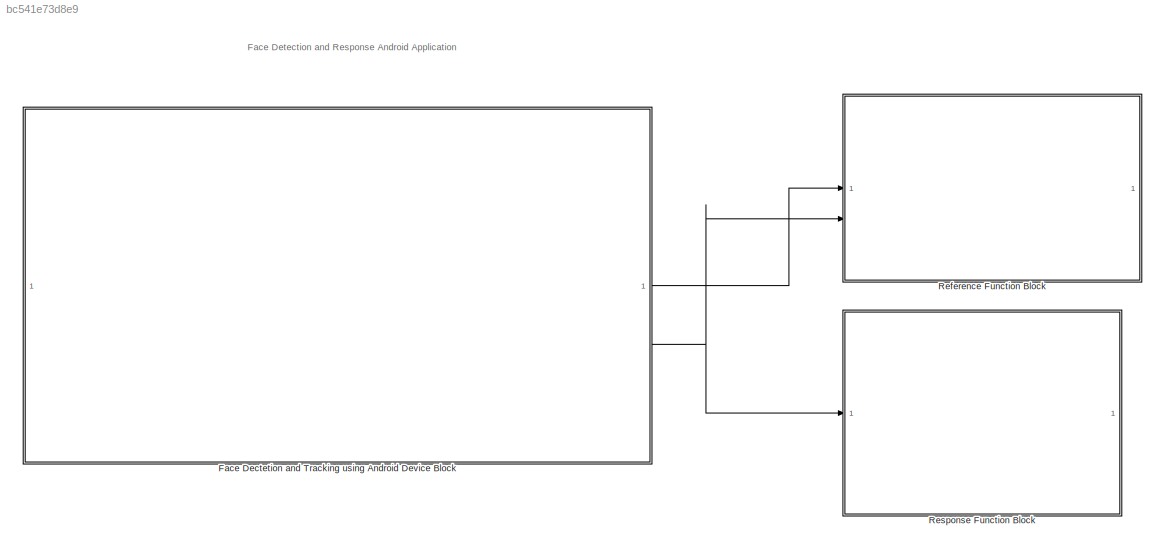
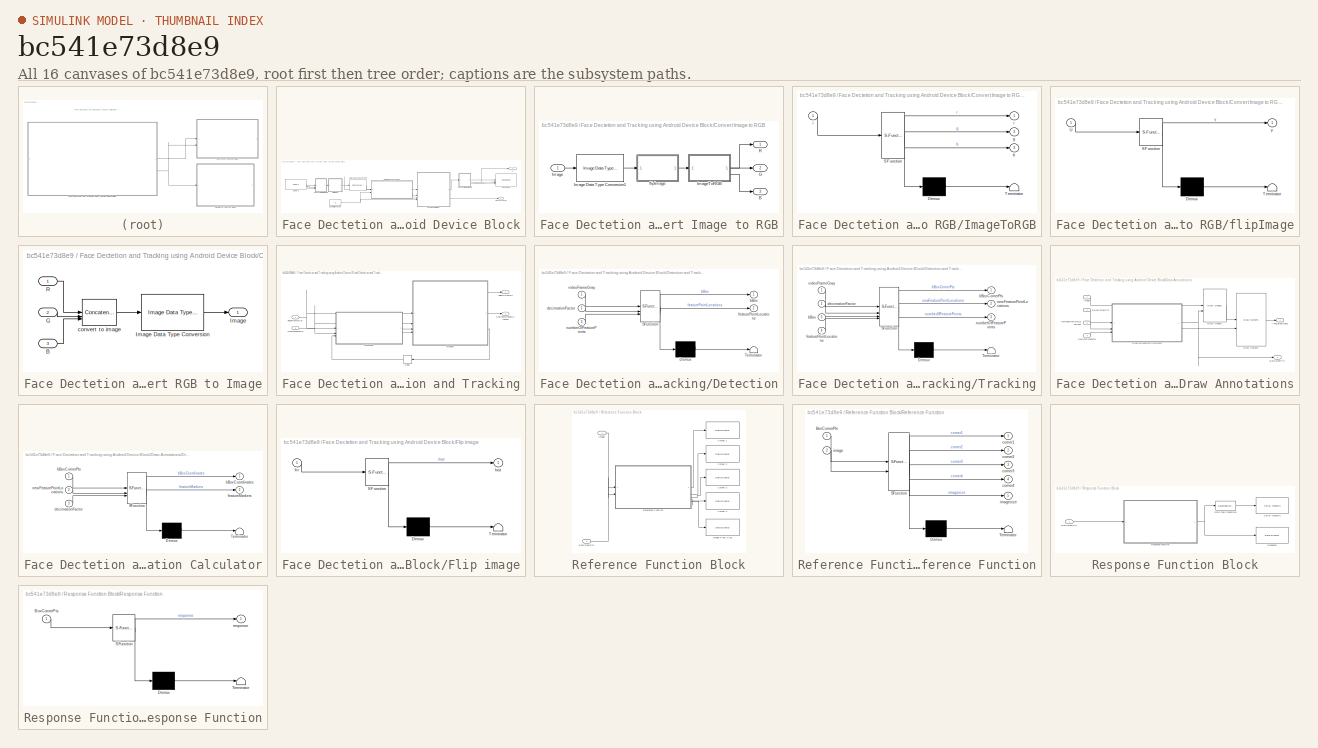
[diagram: thumbnail index - all 16 canvases of the model, root first then tree order]
MODEL slx_bc541e73d8e9
KIND model
CONFIG AbsTol = auto
CONFIG EnableMultiTasking = off
CONFIG FixedStep = auto
CONFIG MaxStep = auto
CONFIG MinStep = auto
CONFIG RelTol = 1e-3
CONFIG SampleTimeConstraint = Unconstrained
CONFIG SolverName = FixedStepAuto
CONFIG StartTime = 0.0
CONFIG StopTime = inf
BLOCK [SubSystem] Face Dectetion and Tracking using Android Device Block
BLOCK [Outport] Face Dectetion and Tracking using Android Device Block/BoxCornerPts
  Port = 2
BLOCK [Reference] Face Dectetion and Tracking using Android Device Block/Camera  REF=androidaudiovideolib/Camera
  SourceBlock = androidaudiovideolib/Camera
  SourceType = codertarget.internal.androidCamera
BLOCK [Reference] Face Dectetion and Tracking using Android Device Block/Color Space Conversion  REF=visionconversions/Color Space
 Conversion
  SourceBlock = visionconversions/Color Space\n Conversion
  SourceType = Color Space Conversion
BLOCK [SubSystem] Face Dectetion and Tracking using Android Device Block/Convert Image to RGB
BLOCK [Outport] Face Dectetion and Tracking using Android Device Block/Convert Image to RGB/B
  Port = 3
BLOCK [Outport] Face Dectetion and Tracking using Android Device Block/Convert Image to RGB/G
  Port = 2
BLOCK [Inport] Face Dectetion and Tracking using Android Device Block/Convert Image to RGB/Image
BLOCK [Reference] Face Dectetion and Tracking using Android Device Block/Convert Image to RGB/Image Data Type Conversion1  REF=visionconversions/Image Data Type
Conversion
  SourceBlock = visionconversions/Image Data Type\nConversion
  SourceType = Image Data Type Conversion
BLOCK [SubSystem] Face Dectetion and Tracking using Android Device Block/Convert Image to RGB/ImageToRGB
  ErrorFcn = Stateflow.Translate.translate
  PermitHierarchicalResolution = ExplicitOnly
  SFBlockType = MATLAB Function
  TreatAsAtomicUnit = on
BLOCK [Demux] Face Dectetion and Tracking using Android Device Block/Convert Image to RGB/ImageToRGB/ Demux 
  Outputs = 1
BLOCK [S-Function] Face Dectetion and Tracking using Android Device Block/Convert Image to RGB/ImageToRGB/ SFunction 
  EnableBusSupport = on
  FunctionName = sf_sfun
  PortCounts = [1 4]
  SFcnIsStateOwnerBlock = off
  SFunctionDeploymentMode = off
  Tag = Stateflow S-Function 4
BLOCK [Terminator] Face Dectetion and Tracking using Android Device Block/Convert Image to RGB/ImageToRGB/ Terminator 
BLOCK [Outport] Face Dectetion and Tracking using Android Device Block/Convert Image to RGB/ImageToRGB/b
  Port = 3
  VectorParamsAs1DForOutWhenUnconnected = off
BLOCK [Outport] Face Dectetion and Tracking using Android Device Block/Convert Image to RGB/ImageToRGB/g
  Port = 2
  VectorParamsAs1DForOutWhenUnconnected = off
BLOCK [Inport] Face Dectetion and Tracking using Android Device Block/Convert Image to RGB/ImageToRGB/i
BLOCK [Outport] Face Dectetion and Tracking using Android Device Block/Convert Image to RGB/ImageToRGB/r
  VectorParamsAs1DForOutWhenUnconnected = off
BLOCK [Outport] Face Dectetion and Tracking using Android Device Block/Convert Image to RGB/R
BLOCK [SubSystem] Face Dectetion and Tracking using Android Device Block/Convert Image to RGB/flipImage
  ErrorFcn = Stateflow.Translate.translate
  PermitHierarchicalResolution = ExplicitOnly
  SFBlockType = MATLAB Function
  TreatAsAtomicUnit = on
BLOCK [Demux] Face Dectetion and Tracking using Android Device Block/Convert Image to RGB/flipImage/ Demux 
  Outputs = 1
BLOCK [S-Function] Face Dectetion and Tracking using Android Device Block/Convert Image to RGB/flipImage/ SFunction 
  EnableBusSupport = on
  FunctionName = sf_sfun
  PortCounts = [1 2]
  SFcnIsStateOwnerBlock = off
  SFunctionDeploymentMode = off
  Tag = Stateflow S-Function 7
BLOCK [Terminator] Face Dectetion and Tracking using Android Device Block/Convert Image to RGB/flipImage/ Terminator 
BLOCK [Inport] Face Dectetion and Tracking using Android Device Block/Convert Image to RGB/flipImage/U
BLOCK [Outport] Face Dectetion and Tracking using Android Device Block/Convert Image to RGB/flipImage/y
  VectorParamsAs1DForOutWhenUnconnected = off
BLOCK [SubSystem] Face Dectetion and Tracking using Android Device Block/Convert RGB to Image
BLOCK [Inport] Face Dectetion and Tracking using Android Device Block/Convert RGB to Image/B
  Port = 3
BLOCK [Inport] Face Dectetion and Tracking using Android Device Block/Convert RGB to Image/G
  Port = 2
BLOCK [Outport] Face Dectetion and Tracking using Android Device Block/Convert RGB to Image/Image
BLOCK [Reference] Face Dectetion and Tracking using Android Device Block/Convert RGB to Image/Image Data Type Conversion  REF=visionconversions/Image Data Type
Conversion
  SourceBlock = visionconversions/Image Data Type\nConversion
  SourceType = Image Data Type Conversion
BLOCK [Inport] Face Dectetion and Tracking using Android Device Block/Convert RGB to Image/R
BLOCK [Concatenate] Face Dectetion and Tracking using Android Device Block/Convert RGB to Image/convert to image
  ConcatenateDimension = 3
  Mode = Multidimensional array
  NumInputs = 3
BLOCK [Constant] Face Dectetion and Tracking using Android Device Block/Decimation Factor
  Value = 3
BLOCK [SubSystem] Face Dectetion and Tracking using Android Device Block/Detection and Tracking
BLOCK [Outport] Face Dectetion and Tracking using Android Device Block/Detection and Tracking/BBoxCornerPts
  VectorParamsAs1DForOutWhenUnconnected = off
BLOCK [Inport] Face Dectetion and Tracking using Android Device Block/Detection and Tracking/DecimationFactor
  Port = 2
BLOCK [Delay] Face Dectetion and Tracking using Android Device Block/Detection and Tracking/Delay
  DelayLength = 1
  InputPortMap = u0
BLOCK [SubSystem] Face Dectetion and Tracking using Android Device Block/Detection and Tracking/Detection
  ErrorFcn = Stateflow.Translate.translate
  PermitHierarchicalResolution = ExplicitOnly
  SFBlockType = MATLAB Function
  TreatAsAtomicUnit = on
BLOCK [Demux] Face Dectetion and Tracking using Android Device Block/Detection and Tracking/Detection/ Demux 
  Outputs = 1
BLOCK [S-Function] Face Dectetion and Tracking using Android Device Block/Detection and Tracking/Detection/ SFunction 
  EnableBusSupport = on
  FunctionName = sf_sfun
  PortCounts = [3 3]
  SFcnIsStateOwnerBlock = off
  SFunctionDeploymentMode = off
  Tag = Stateflow S-Function 2
BLOCK [Terminator] Face Dectetion and Tracking using Android Device Block/Detection and Tracking/Detection/ Terminator 
BLOCK [Outport] Face Dectetion and Tracking using Android Device Block/Detection and Tracking/Detection/bBox
  VectorParamsAs1DForOutWhenUnconnected = off
BLOCK [Inport] Face Dectetion and Tracking using Android Device Block/Detection and Tracking/Detection/decimationFactor
  Port = 2
BLOCK [Outport] Face Dectetion and Tracking using Android Device Block/Detection and Tracking/Detection/featurePointLocations
  Port = 2
  VectorParamsAs1DForOutWhenUnconnected = off
BLOCK [Inport] Face Dectetion and Tracking using Android Device Block/Detection and Tracking/Detection/numberOfFeaturePoints
  Port = 3
BLOCK [Inport] Face Dectetion and Tracking using Android Device Block/Detection and Tracking/Detection/videoFrameGray
BLOCK [Outport] Face Dectetion and Tracking using Android Device Block/Detection and Tracking/NewFeaturePointLocations
  Port = 2
  VectorParamsAs1DForOutWhenUnconnected = off
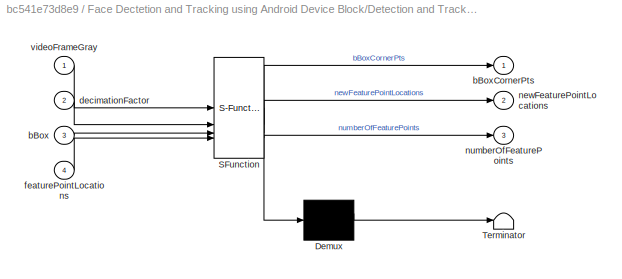
BLOCK [SubSystem] Face Dectetion and Tracking using Android Device Block/Detection and Tracking/Tracking
  ErrorFcn = Stateflow.Translate.translate
  PermitHierarchicalResolution = ExplicitOnly
  SFBlockType = MATLAB Function
  TreatAsAtomicUnit = on
BLOCK [Demux] Face Dectetion and Tracking using Android Device Block/Detection and Tracking/Tracking/ Demux 
  Outputs = 1
BLOCK [S-Function] Face Dectetion and Tracking using Android Device Block/Detection and Tracking/Tracking/ SFunction 
  EnableBusSupport = on
  FunctionName = sf_sfun
  PortCounts = [4 4]
  SFcnIsStateOwnerBlock = off
  SFunctionDeploymentMode = off
  Tag = Stateflow S-Function 1
BLOCK [Terminator] Face Dectetion and Tracking using Android Device Block/Detection and Tracking/Tracking/ Terminator 
BLOCK [Inport] Face Dectetion and Tracking using Android Device Block/Detection and Tracking/Tracking/bBox
  Port = 3
BLOCK [Outport] Face Dectetion and Tracking using Android Device Block/Detection and Tracking/Tracking/bBoxCornerPts
  VectorParamsAs1DForOutWhenUnconnected = off
BLOCK [Inport] Face Dectetion and Tracking using Android Device Block/Detection and Tracking/Tracking/decimationFactor
  Port = 2
BLOCK [Inport] Face Dectetion and Tracking using Android Device Block/Detection and Tracking/Tracking/featurePointLocations
  Port = 4
BLOCK [Outport] Face Dectetion and Tracking using Android Device Block/Detection and Tracking/Tracking/newFeaturePointLocations
  Port = 2
  VectorParamsAs1DForOutWhenUnconnected = off
BLOCK [Outport] Face Dectetion and Tracking using Android Device Block/Detection and Tracking/Tracking/numberOfFeaturePoints
  Port = 3
  VectorParamsAs1DForOutWhenUnconnected = off
BLOCK [Inport] Face Dectetion and Tracking using Android Device Block/Detection and Tracking/Tracking/videoFrameGray
BLOCK [Inport] Face Dectetion and Tracking using Android Device Block/Detection and Tracking/VideoFrameGray
BLOCK [SubSystem] Face Dectetion and Tracking using Android Device Block/Draw Annotations
BLOCK [Outport] Face Dectetion and Tracking using Android Device Block/Draw Annotations/AnnotatedImage
  VectorParamsAs1DForOutWhenUnconnected = off
BLOCK [Inport] Face Dectetion and Tracking using Android Device Block/Draw Annotations/BBoxCornerPts
  Port = 2
BLOCK [Outport] Face Dectetion and Tracking using Android Device Block/Draw Annotations/BoxCornerPts
  Port = 2
  VectorParamsAs1DForOutWhenUnconnected = off
BLOCK [Inport] Face Dectetion and Tracking using Android Device Block/Draw Annotations/DecimationFactor
  Port = 4
BLOCK [Reference] Face Dectetion and Tracking using Android Device Block/Draw Annotations/Draw Markers  REF=visiontextngfix/Draw Markers
  SourceBlock = visiontextngfix/Draw Markers
  SourceType = Draw Markers
BLOCK [Reference] Face Dectetion and Tracking using Android Device Block/Draw Annotations/Draw Shapes  REF=visiontextngfix/Draw Shapes
  SourceBlock = visiontextngfix/Draw Shapes
  SourceType = Draw Shapes
BLOCK [SubSystem] Face Dectetion and Tracking using Android Device Block/Draw Annotations/Drawing Location Calculator
  ErrorFcn = Stateflow.Translate.translate
  PermitHierarchicalResolution = ExplicitOnly
  SFBlockType = MATLAB Function
  TreatAsAtomicUnit = on
BLOCK [Demux] Face Dectetion and Tracking using Android Device Block/Draw Annotations/Drawing Location Calculator/ Demux 
  Outputs = 1
BLOCK [S-Function] Face Dectetion and Tracking using Android Device Block/Draw Annotations/Drawing Location Calculator/ SFunction 
  EnableBusSupport = on
  FunctionName = sf_sfun
  PortCounts = [3 3]
  SFcnIsStateOwnerBlock = off
  SFunctionDeploymentMode = off
  Tag = Stateflow S-Function 3
BLOCK [Terminator] Face Dectetion and Tracking using Android Device Block/Draw Annotations/Drawing Location Calculator/ Terminator 
BLOCK [Outport] Face Dectetion and Tracking using Android Device Block/Draw Annotations/Drawing Location Calculator/bBoxCoordinates
  VectorParamsAs1DForOutWhenUnconnected = off
BLOCK [Inport] Face Dectetion and Tracking using Android Device Block/Draw Annotations/Drawing Location Calculator/bBoxCornerPts
BLOCK [Inport] Face Dectetion and Tracking using Android Device Block/Draw Annotations/Drawing Location Calculator/decimationFactor
  Port = 3
BLOCK [Outport] Face Dectetion and Tracking using Android Device Block/Draw Annotations/Drawing Location Calculator/featureMarkers
  Port = 2
  VectorParamsAs1DForOutWhenUnconnected = off
BLOCK [Inport] Face Dectetion and Tracking using Android Device Block/Draw Annotations/Drawing Location Calculator/newFeaturePointLocations
  Port = 2
BLOCK [Inport] Face Dectetion and Tracking using Android Device Block/Draw Annotations/Image
BLOCK [Inport] Face Dectetion and Tracking using Android Device Block/Draw Annotations/NewFeaturePointLocations
  Port = 3
BLOCK [SubSystem] Face Dectetion and Tracking using Android Device Block/Flip image
  ErrorFcn = Stateflow.Translate.translate
  PermitHierarchicalResolution = ExplicitOnly
  SFBlockType = MATLAB Function
  TreatAsAtomicUnit = on
BLOCK [Demux] Face Dectetion and Tracking using Android Device Block/Flip image/ Demux 
  Outputs = 1
BLOCK [S-Function] Face Dectetion and Tracking using Android Device Block/Flip image/ SFunction 
  EnableBusSupport = on
  FunctionName = sf_sfun
  PortCounts = [1 2]
  SFcnIsStateOwnerBlock = off
  SFunctionDeploymentMode = off
  Tag = Stateflow S-Function 5
BLOCK [Terminator] Face Dectetion and Tracking using Android Device Block/Flip image/ Terminator 
BLOCK [Inport] Face Dectetion and Tracking using Android Device Block/Flip image/Iin
BLOCK [Outport] Face Dectetion and Tracking using Android Device Block/Flip image/Iout
  VectorParamsAs1DForOutWhenUnconnected = off
BLOCK [Outport] Face Dectetion and Tracking using Android Device Block/G
BLOCK [Reference] Face Dectetion and Tracking using Android Device Block/Video Display  REF=androidaudiovideolib/Video Display
  SourceBlock = androidaudiovideolib/Video Display
  SourceType = codertarget.internal.androidVideoDisplay
BLOCK [SubSystem] Reference Function Block
BLOCK [Inport] Reference Function Block/BoxCornerPts
  Port = 2
BLOCK [Reference] Reference Function Block/Corner 1  REF=androiduilib/Data Display
  SourceBlock = androiduilib/Data Display
  SourceType = codertarget.internal.androidDataDisplay
BLOCK [Reference] Reference Function Block/Corner 2  REF=androiduilib/Data Display
  SourceBlock = androiduilib/Data Display
  SourceType = codertarget.internal.androidDataDisplay
BLOCK [Reference] Reference Function Block/Corner 3  REF=androiduilib/Data Display
  SourceBlock = androiduilib/Data Display
  SourceType = codertarget.internal.androidDataDisplay
BLOCK [Reference] Reference Function Block/Corner 4  REF=androiduilib/Data Display
  SourceBlock = androiduilib/Data Display
  SourceType = codertarget.internal.androidDataDisplay
BLOCK [Reference] Reference Function Block/Image Pixel Size  REF=androiduilib/Data Display
  SourceBlock = androiduilib/Data Display
  SourceType = codertarget.internal.androidDataDisplay
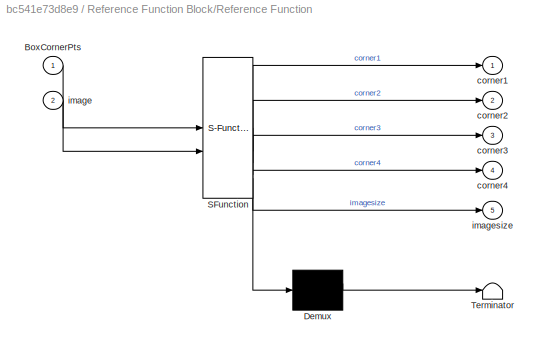
BLOCK [SubSystem] Reference Function Block/Reference Function
  ErrorFcn = Stateflow.Translate.translate
  PermitHierarchicalResolution = ExplicitOnly
  SFBlockType = MATLAB Function
  TreatAsAtomicUnit = on
BLOCK [Demux] Reference Function Block/Reference Function/ Demux 
  Outputs = 1
BLOCK [S-Function] Reference Function Block/Reference Function/ SFunction 
  EnableBusSupport = on
  FunctionName = sf_sfun
  PortCounts = [2 6]
  SFcnIsStateOwnerBlock = off
  SFunctionDeploymentMode = off
  Tag = Stateflow S-Function 8
BLOCK [Terminator] Reference Function Block/Reference Function/ Terminator 
BLOCK [Inport] Reference Function Block/Reference Function/BoxCornerPts
BLOCK [Outport] Reference Function Block/Reference Function/corner1
  VectorParamsAs1DForOutWhenUnconnected = off
BLOCK [Outport] Reference Function Block/Reference Function/corner2
  Port = 2
BLOCK [Outport] Reference Function Block/Reference Function/corner3
  Port = 3
BLOCK [Outport] Reference Function Block/Reference Function/corner4
  Port = 4
BLOCK [Inport] Reference Function Block/Reference Function/image
  Port = 2
BLOCK [Outport] Reference Function Block/Reference Function/imagesize
  Port = 5
BLOCK [Inport] Reference Function Block/image
BLOCK [SubSystem] Response Function Block
BLOCK [Inport] Response Function Block/BoxCornerPts
BLOCK [DataTypeConversion] Response Function Block/Data Type Conversion
  OutDataTypeStr = uint8
  RndMeth = Floor
  SaturateOnIntegerOverflow = off
BLOCK [Reference] Response Function Block/Response  REF=androiduilib/Data Display
  SourceBlock = androiduilib/Data Display
  SourceType = codertarget.internal.androidDataDisplay
BLOCK [SubSystem] Response Function Block/Response Function
  ErrorFcn = Stateflow.Translate.translate
  PermitHierarchicalResolution = ExplicitOnly
  SFBlockType = MATLAB Function
  TreatAsAtomicUnit = on
BLOCK [Demux] Response Function Block/Response Function/ Demux 
  Outputs = 1
BLOCK [S-Function] Response Function Block/Response Function/ SFunction 
  EnableBusSupport = on
  FunctionName = sf_sfun
  PortCounts = [1 2]
  SFcnIsStateOwnerBlock = off
  SFunctionDeploymentMode = off
  Tag = Stateflow S-Function 9
BLOCK [Terminator] Response Function Block/Response Function/ Terminator 
BLOCK [Inport] Response Function Block/Response Function/BoxCornerPts
BLOCK [Outport] Response Function Block/Response Function/response
  VectorParamsAs1DForOutWhenUnconnected = off
BLOCK [Reference] Response Function Block/Serial Transmit  REF=androidcommunicationlib/Serial Transmit
  SourceBlock = androidcommunicationlib/Serial Transmit
  SourceType = codertarget.internal.androidSerialTransmit
ANNOTATION (root): Face Detection and Response Android Application
LINE Face Dectetion and Tracking using Android Device Block/Camera:1 -> Face Dectetion and Tracking using Android Device Block/Convert RGB to Image:1
LINE Face Dectetion and Tracking using Android Device Block/Camera:2 -> Face Dectetion and Tracking using Android Device Block/Convert RGB to Image:2
LINE Face Dectetion and Tracking using Android Device Block/Camera:3 -> Face Dectetion and Tracking using Android Device Block/Convert RGB to Image:3
LINE Face Dectetion and Tracking using Android Device Block/Color Space Conversion:1 -> Face Dectetion and Tracking using Android Device Block/Detection and Tracking:1
LINE Face Dectetion and Tracking using Android Device Block/Convert Image to RGB/Image Data Type Conversion1:1 -> Face Dectetion and Tracking using Android Device Block/Convert Image to RGB/flipImage:1
LINE Face Dectetion and Tracking using Android Device Block/Convert Image to RGB/Image:1 -> Face Dectetion and Tracking using Android Device Block/Convert Image to RGB/Image Data Type Conversion1:1
LINE Face Dectetion and Tracking using Android Device Block/Convert Image to RGB/ImageToRGB:1 -> Face Dectetion and Tracking using Android Device Block/Convert Image to RGB/R:1
LINE Face Dectetion and Tracking using Android Device Block/Convert Image to RGB/ImageToRGB:2 -> Face Dectetion and Tracking using Android Device Block/Convert Image to RGB/G:1
LINE Face Dectetion and Tracking using Android Device Block/Convert Image to RGB/ImageToRGB:3 -> Face Dectetion and Tracking using Android Device Block/Convert Image to RGB/B:1
LINE Face Dectetion and Tracking using Android Device Block/Convert Image to RGB/flipImage:1 -> Face Dectetion and Tracking using Android Device Block/Convert Image to RGB/ImageToRGB:1
LINE Face Dectetion and Tracking using Android Device Block/Convert Image to RGB:1 -> Face Dectetion and Tracking using Android Device Block/Video Display:1
NET Face Dectetion and Tracking using Android Device Block/Convert Image to RGB:2 -> Face Dectetion and Tracking using Android Device Block/G:1, Face Dectetion and Tracking using Android Device Block/Video Display:2
LINE Face Dectetion and Tracking using Android Device Block/Convert Image to RGB:3 -> Face Dectetion and Tracking using Android Device Block/Video Display:3
LINE Face Dectetion and Tracking using Android Device Block/Convert RGB to Image/B:1 -> Face Dectetion and Tracking using Android Device Block/Convert RGB to Image/convert to image:3
LINE Face Dectetion and Tracking using Android Device Block/Convert RGB to Image/G:1 -> Face Dectetion and Tracking using Android Device Block/Convert RGB to Image/convert to image:2
LINE Face Dectetion and Tracking using Android Device Block/Convert RGB to Image/Image Data Type Conversion:1 -> Face Dectetion and Tracking using Android Device Block/Convert RGB to Image/Image:1
LINE Face Dectetion and Tracking using Android Device Block/Convert RGB to Image/R:1 -> Face Dectetion and Tracking using Android Device Block/Convert RGB to Image/convert to image:1
LINE Face Dectetion and Tracking using Android Device Block/Convert RGB to Image/convert to image:1 -> Face Dectetion and Tracking using Android Device Block/Convert RGB to Image/Image Data Type Conversion:1
LINE Face Dectetion and Tracking using Android Device Block/Convert RGB to Image:1 -> Face Dectetion and Tracking using Android Device Block/Flip image:1
NET Face Dectetion and Tracking using Android Device Block/Decimation Factor:1 -> Face Dectetion and Tracking using Android Device Block/Detection and Tracking:2, Face Dectetion and Tracking using Android Device Block/Draw Annotations:4
NET Face Dectetion and Tracking using Android Device Block/Detection and Tracking/DecimationFactor:1 -> Face Dectetion and Tracking using Android Device Block/Detection and Tracking/Detection:2, Face Dectetion and Tracking using Android Device Block/Detection and Tracking/Tracking:2
LINE Face Dectetion and Tracking using Android Device Block/Detection and Tracking/Delay:1 -> Face Dectetion and Tracking using Android Device Block/Detection and Tracking/Detection:3
LINE Face Dectetion and Tracking using Android Device Block/Detection and Tracking/Detection:1 -> Face Dectetion and Tracking using Android Device Block/Detection and Tracking/Tracking:3
LINE Face Dectetion and Tracking using Android Device Block/Detection and Tracking/Detection:2 -> Face Dectetion and Tracking using Android Device Block/Detection and Tracking/Tracking:4
LINE Face Dectetion and Tracking using Android Device Block/Detection and Tracking/Tracking:1 -> Face Dectetion and Tracking using Android Device Block/Detection and Tracking/BBoxCornerPts:1
LINE Face Dectetion and Tracking using Android Device Block/Detection and Tracking/Tracking:2 -> Face Dectetion and Tracking using Android Device Block/Detection and Tracking/NewFeaturePointLocations:1
LINE Face Dectetion and Tracking using Android Device Block/Detection and Tracking/Tracking:3 -> Face Dectetion and Tracking using Android Device Block/Detection and Tracking/Delay:1
NET Face Dectetion and Tracking using Android Device Block/Detection and Tracking/VideoFrameGray:1 -> Face Dectetion and Tracking using Android Device Block/Detection and Tracking/Detection:1, Face Dectetion and Tracking using Android Device Block/Detection and Tracking/Tracking:1
LINE Face Dectetion and Tracking using Android Device Block/Detection and Tracking:1 -> Face Dectetion and Tracking using Android Device Block/Draw Annotations:2
LINE Face Dectetion and Tracking using Android Device Block/Detection and Tracking:2 -> Face Dectetion and Tracking using Android Device Block/Draw Annotations:3
LINE Face Dectetion and Tracking using Android Device Block/Draw Annotations/BBoxCornerPts:1 -> Face Dectetion and Tracking using Android Device Block/Draw Annotations/Drawing Location Calculator:1
LINE Face Dectetion and Tracking using Android Device Block/Draw Annotations/DecimationFactor:1 -> Face Dectetion and Tracking using Android Device Block/Draw Annotations/Drawing Location Calculator:3
LINE Face Dectetion and Tracking using Android Device Block/Draw Annotations/Draw Markers:1 -> Face Dectetion and Tracking using Android Device Block/Draw Annotations/AnnotatedImage:1
LINE Face Dectetion and Tracking using Android Device Block/Draw Annotations/Draw Shapes:1 -> Face Dectetion and Tracking using Android Device Block/Draw Annotations/Draw Markers:1
NET Face Dectetion and Tracking using Android Device Block/Draw Annotations/Drawing Location Calculator:1 -> Face Dectetion and Tracking using Android Device Block/Draw Annotations/BoxCornerPts:1, Face Dectetion and Tracking using Android Device Block/Draw Annotations/Draw Shapes:2
LINE Face Dectetion and Tracking using Android Device Block/Draw Annotations/Drawing Location Calculator:2 -> Face Dectetion and Tracking using Android Device Block/Draw Annotations/Draw Markers:2
LINE Face Dectetion and Tracking using Android Device Block/Draw Annotations/Image:1 -> Face Dectetion and Tracking using Android Device Block/Draw Annotations/Draw Shapes:1
LINE Face Dectetion and Tracking using Android Device Block/Draw Annotations/NewFeaturePointLocations:1 -> Face Dectetion and Tracking using Android Device Block/Draw Annotations/Drawing Location Calculator:2
LINE Face Dectetion and Tracking using Android Device Block/Draw Annotations:1 -> Face Dectetion and Tracking using Android Device Block/Convert Image to RGB:1
LINE Face Dectetion and Tracking using Android Device Block/Draw Annotations:2 -> Face Dectetion and Tracking using Android Device Block/BoxCornerPts:1
NET Face Dectetion and Tracking using Android Device Block/Flip image:1 -> Face Dectetion and Tracking using Android Device Block/Color Space Conversion:1, Face Dectetion and Tracking using Android Device Block/Draw Annotations:1
LINE Face Dectetion and Tracking using Android Device Block:1 -> Reference Function Block:1
NET Face Dectetion and Tracking using Android Device Block:2 -> Reference Function Block:2, Response Function Block:1
LINE Reference Function Block/BoxCornerPts:1 -> Reference Function Block/Reference Function:1
LINE Reference Function Block/Reference Function:1 -> Reference Function Block/Corner 1:1
LINE Reference Function Block/Reference Function:2 -> Reference Function Block/Corner 2:1
LINE Reference Function Block/Reference Function:3 -> Reference Function Block/Corner 3:1
LINE Reference Function Block/Reference Function:4 -> Reference Function Block/Corner 4:1
LINE Reference Function Block/Reference Function:5 -> Reference Function Block/Image Pixel Size:1
LINE Reference Function Block/image:1 -> Reference Function Block/Reference Function:2
LINE Response Function Block/BoxCornerPts:1 -> Response Function Block/Response Function:1
LINE Response Function Block/Data Type Conversion:1 -> Response Function Block/Serial Transmit:1
NET Response Function Block/Response Function:1 -> Response Function Block/Data Type Conversion:1, Response Function Block/Response:1
note: NET lines group one-source signal fan-out (src -> all destinations, sorted); 1:1 wires keep LINE
CHART Face Dectetion and Tracking using Android Device Block/Detection and Tracking/Tracking states=1 transitions=1
  STATE_LABEL 'eML_blk_kernel()'
  STATE_LABEL 'SCRIPT:\n% Function for tracking face and feature points\n%\n% <copyright redacted>\nfunction [bBoxCornerPts, newFeaturePointLocations, numberOfFeaturePoints]  = trackPoints(videoFrameGray, decimationFactor, bBox, featurePointLocations)\n%#codegen\npersistent pointTracker\npersistent oldPoints\npersistent bboxPoints\npersistent first_time\npersistent numPts\n\n% Create the point tracker object.\n...<+2704ch>'
CHART Face Dectetion and Tracking using Android Device Block/Detection and Tracking/Detection states=1 transitions=1
  STATE_LABEL 'eML_blk_kernel()'
  STATE_LABEL 'SCRIPT:\n% Function for detecting a face and feature points.\n%\n% <copyright redacted>\nfunction [bBox, featurePointLocations]  = detectFaceAndFeatures(...\n    videoFrameGray, decimationFactor, numberOfFeaturePoints)\n\n%#codegen\npersistent faceDetector\n\n% Resize frame\nvideoFrameGray = videoFrameGray(1:decimationFactor:end,1:decimationFactor:end);\n\n% Perform detection when the number of p...<+885ch>'
CHART Face Dectetion and Tracking using Android Device Block/Draw Annotations/Drawing Location Calculator states=1 transitions=1
  STATE_LABEL 'eML_blk_kernel()'
  STATE_LABEL "SCRIPT:\n% Function for calculating drawing locations\n%\n% <copyright redacted>\nfunction [bBoxCoordinates, featureMarkers]  = obtainDrawingLocations(bBoxCornerPts, newFeaturePointLocations, decimationFactor)\n\nif ~isempty(bBoxCornerPts)\n    % Convert the box corners into the [x1 y1 x2 y2 x3 y3 x4 y4]\n    % format required by insertShape.\n    bboxPolygon = reshape(bBoxCornerPts', 1, []);...<+443ch>"
CHART Face Dectetion and Tracking using Android Device Block/Convert Image to RGB/ImageToRGB states=1 transitions=1
  STATE_LABEL 'eML_blk_kernel()'
  STATE_LABEL 'SCRIPT:\nfunction [r, g, b] = ImageToRGB(i)\nr=i(:,:,1);\ng=i(:,:,2);\nb=i(:,:,3);\n\n'
CHART Face Dectetion and Tracking using Android Device Block/Flip image states=1 transitions=1
  STATE_LABEL 'eML_blk_kernel()'
  STATE_LABEL 'SCRIPT:\nfunction Iout = flip(Iin)\n%rotate image anti clockwise 90 degrees\nIin= imrotate( Iin , 90 );\n%Flip image\nIin=flipdim(Iin,1);\nIout = Iin;'
CHART Face Dectetion and Tracking using Android Device Block/Convert Image to RGB/flipImage states=1 transitions=1
  STATE_LABEL 'eML_blk_kernel()'
  STATE_LABEL 'SCRIPT:\nfunction y = flipImage(U)\nU= imrotate( U , 90 );\n%Flip image\nU=flipdim(U,1);\n\ny = U;\n'
CHART Reference Function Block/Reference Function states=1 transitions=1
  STATE_LABEL 'eML_blk_kernel()'
  STATE_LABEL 'SCRIPT:\n% Function to show the coordinates of each corner on the android device for\n% reference.\n\nfunction [corner1,corner2,corner3,corner4,imagesize]   = ReferenceFunction(BoxCornerPts,image)\n\ncorner1 = [BoxCornerPts(1,1) BoxCornerPts(1,2)];\ncorner2 = [BoxCornerPts(1,3) BoxCornerPts(1,4)];\ncorner3 = [BoxCornerPts(1,5) BoxCornerPts(1,6)];\ncorner4 = [BoxCornerPts(1,7) BoxCornerPts(1,8)];\nimagesize ...<+18ch>'
CHART Response Function Block/Response Function states=1 transitions=1
  STATE_LABEL 'eML_blk_kernel()'
  STATE_LABEL 'SCRIPT:\n% Function to use corner points from the face detection to determine what\n% repsonse is required to move the arduino robot to achieve the required\n% distance between robot and detected face.\n\n%Robot Controls:\n%response = 0 --> Stop\n%response = 1 --> Forward\n%response = 2 --> Reverse\n%response = 3 --> Right\n%response = 4 --> Left\n\nfunction response  = ResponseFunction(BoxCornerPts)\n\nif sum(...<+1020ch>'
CHART  states=0 transitions=0
CHART  states=0 transitions=0
CHART  states=0 transitions=0
CHART  states=0 transitions=0
CHART  states=0 transitions=0
CHART  states=0 transitions=0
CHART  states=0 transitions=0
CHART  states=0 transitions=0
